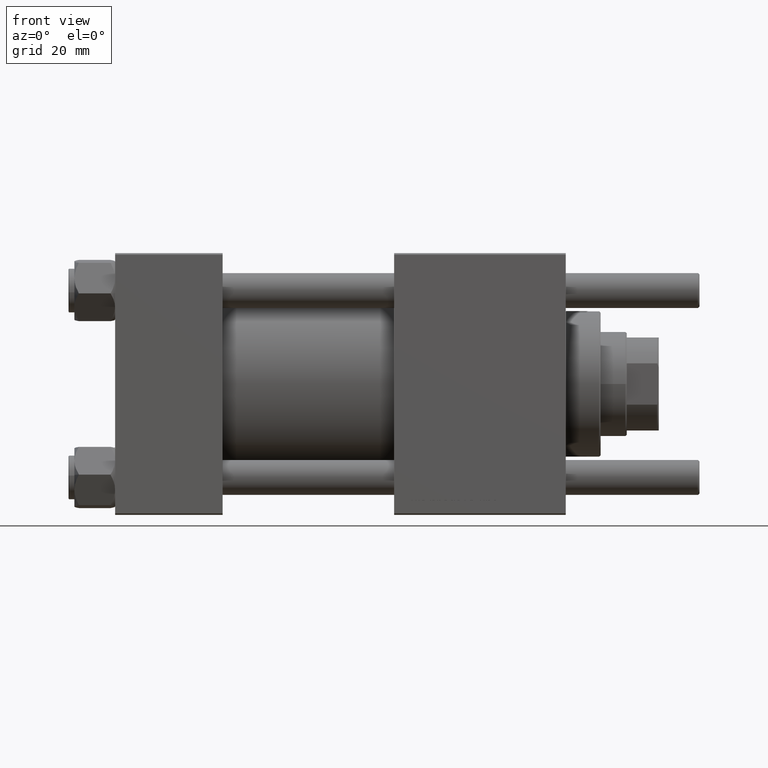
[diagram: clean part render]
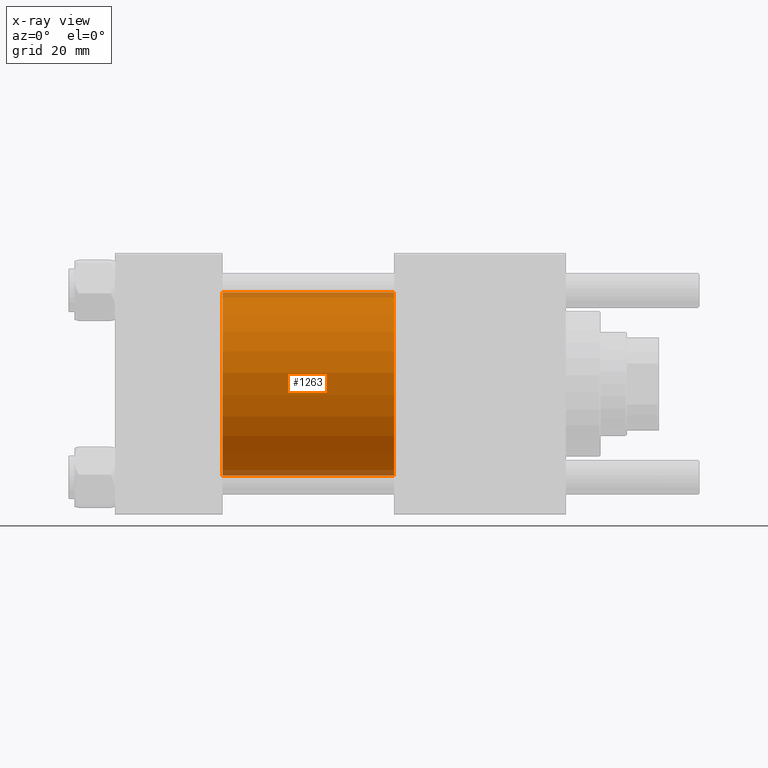
[diagram: x-ray — body ghosted, one internal face saturated and labeled with its STEP entity id]
A machine part, front view, then the same camera in x-ray: the body is ghosted and one INTERNAL B-rep face — a face not visible from any outside direction — is saturated and labeled: STEP entity #1263.
In plain terms, the highlighted cylindrical surface (partial cylindrical patch) has radius 31.5 mm, axis along (-1, -0, -0).
Its self-contained STEP definition (entity closure, byte-faithful):
#1030 = CARTESIAN_POINT ( 'NONE',  ( 37.00000000000000000, 1.255552203348951850E-15, -31.50000000000000000 ) ) ;
#1263 = ADVANCED_FACE ( 'NONE', ( #54753 ), #15343, .F. ) ;
#3455 = EDGE_CURVE ( 'NONE', #19762, #48548, #18304, .T. ) ;
#6796 = EDGE_CURVE ( 'NONE', #48548, #29777, #52962, .T. ) ;
#10770 = DIRECTION ( 'NONE',  ( -1.000000000000000000, -0.000000000000000000, -0.000000000000000000 ) ) ;
#11258 = DIRECTION ( 'NONE',  ( 0.000000000000000000, 0.000000000000000000, -1.000000000000000000 ) ) ;
#12526 = DIRECTION ( 'NONE',  ( -1.000000000000000000, -0.000000000000000000, -0.000000000000000000 ) ) ;
#12863 = DIRECTION ( 'NONE',  ( 1.000000000000000000, 0.000000000000000000, 0.000000000000000000 ) ) ;
#15343 = CYLINDRICAL_SURFACE ( 'NONE', #52797, 31.50000000000000000 ) ;
#18304 = LINE ( 'NONE', #36139, #43652 ) ;
#19342 = CARTESIAN_POINT ( 'NONE',  ( 96.00000000000000000, 1.255552203348951850E-15, -31.50000000000000000 ) ) ;
#19762 = VERTEX_POINT ( 'NONE', #24666 ) ;
#21155 = LINE ( 'NONE', #56807, #36248 ) ;
#21757 = DIRECTION ( 'NONE',  ( 0.000000000000000000, 0.000000000000000000, -1.000000000000000000 ) ) ;
#22057 = DIRECTION ( 'NONE',  ( -1.000000000000000000, -0.000000000000000000, -0.000000000000000000 ) ) ;
#24666 = CARTESIAN_POINT ( 'NONE',  ( 96.00000000000000000, -2.602085213965210642E-15, 31.50000000000000000 ) ) ;
#25788 = CARTESIAN_POINT ( 'NONE',  ( 37.00000000000000000, -2.602085213965210642E-15, 0.000000000000000000 ) ) ;
#28286 = DIRECTION ( 'NONE',  ( 0.000000000000000000, 0.000000000000000000, 1.000000000000000000 ) ) ;
#29777 = VERTEX_POINT ( 'NONE', #1030 ) ;
#30484 = EDGE_CURVE ( 'NONE', #19762, #44901, #55354, .T. ) ;
#34027 = ORIENTED_EDGE ( 'NONE', *, *, #3455, .F. ) ;
#36139 = CARTESIAN_POINT ( 'NONE',  ( 96.00000000000000000, -2.602085213965210642E-15, 31.50000000000000000 ) ) ;
#36248 = VECTOR ( 'NONE', #12526, 1000.000000000000000 ) ;
#39599 = EDGE_CURVE ( 'NONE', #44901, #29777, #21155, .T. ) ;
#41822 = EDGE_LOOP ( 'NONE', ( #51045, #45773, #53133, #34027 ) ) ;
#42914 = CARTESIAN_POINT ( 'NONE',  ( 37.00000000000000000, -2.602085213965210642E-15, 31.50000000000000000 ) ) ;
#43338 = DIRECTION ( 'NONE',  ( 1.000000000000000000, 0.000000000000000000, 0.000000000000000000 ) ) ;
#43652 = VECTOR ( 'NONE', #22057, 1000.000000000000000 ) ;
#44901 = VERTEX_POINT ( 'NONE', #19342 ) ;
#45773 = ORIENTED_EDGE ( 'NONE', *, *, #39599, .T. ) ;
#46159 = AXIS2_PLACEMENT_3D ( 'NONE', #56291, #12863, #11258 ) ;
#47463 = AXIS2_PLACEMENT_3D ( 'NONE', #25788, #43338, #21757 ) ;
#48548 = VERTEX_POINT ( 'NONE', #42914 ) ;
#50144 = CARTESIAN_POINT ( 'NONE',  ( 96.00000000000000000, -2.602085213965210642E-15, 0.000000000000000000 ) ) ;
#51045 = ORIENTED_EDGE ( 'NONE', *, *, #30484, .T. ) ;
#52797 = AXIS2_PLACEMENT_3D ( 'NONE', #50144, #10770, #28286 ) ;
#52962 = CIRCLE ( 'NONE', #47463, 31.50000000000000000 ) ;
#53133 = ORIENTED_EDGE ( 'NONE', *, *, #6796, .F. ) ;
#54753 = FACE_OUTER_BOUND ( 'NONE', #41822, .T. ) ;
#55354 = CIRCLE ( 'NONE', #46159, 31.50000000000000000 ) ;
#56291 = CARTESIAN_POINT ( 'NONE',  ( 96.00000000000000000, -2.602085213965210642E-15, 0.000000000000000000 ) ) ;
#56807 = CARTESIAN_POINT ( 'NONE',  ( 96.00000000000000000, 1.255552203348951850E-15, -31.50000000000000000 ) ) ;